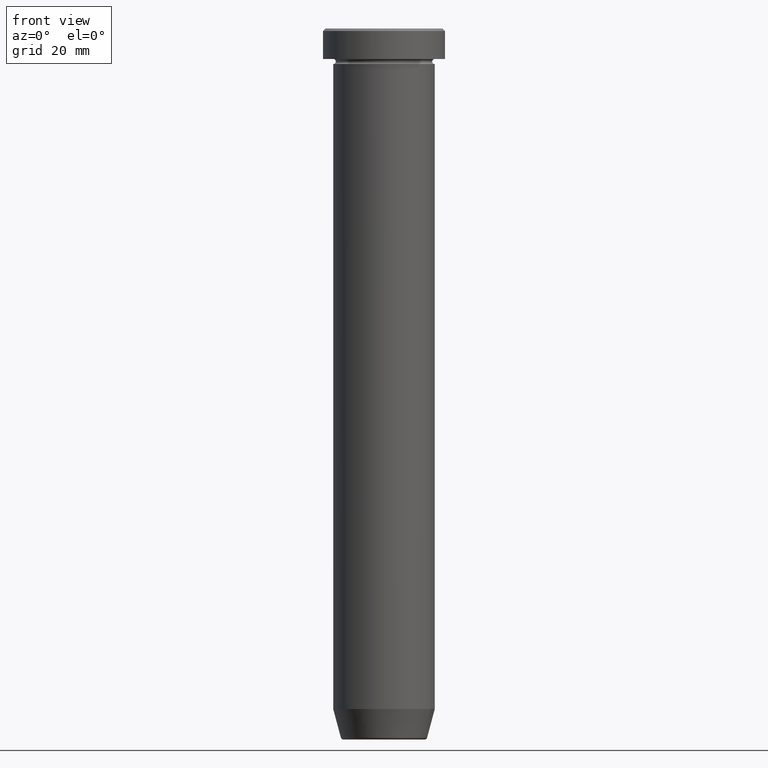
[diagram: clean part render]
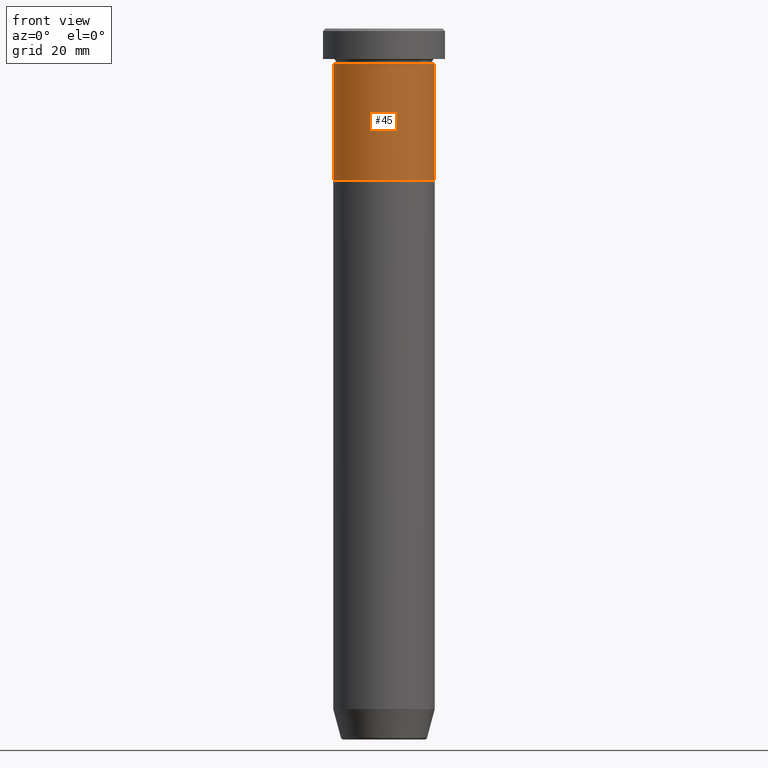
[diagram: same view with one face highlighted and labeled with its STEP entity id]
A machine part, front view. The second image highlights one B-rep face of the part: STEP entity #45.
In plain terms, the highlighted cylindrical surface (partial cylindrical patch) has radius 10 mm, axis along (-0, -0, 1).
Its self-contained STEP definition (entity closure, byte-faithful):
#13 = VERTEX_POINT ( 'NONE', #433 ) ;
#26 = VERTEX_POINT ( 'NONE', #547 ) ;
#45 = ADVANCED_FACE ( 'NONE', ( #219 ), #404, .T. ) ;
#64 = LINE ( 'NONE', #434, #79 ) ;
#67 = CARTESIAN_POINT ( 'NONE',  ( -10.00000000000000000, 1.224646799147353256E-15, -30.00000000000000000 ) ) ;
#79 = VECTOR ( 'NONE', #113, 1000.000000000000000 ) ;
#99 = ORIENTED_EDGE ( 'NONE', *, *, #581, .F. ) ;
#113 = DIRECTION ( 'NONE',  ( -0.000000000000000000, -0.000000000000000000, 1.000000000000000000 ) ) ;
#121 = ORIENTED_EDGE ( 'NONE', *, *, #405, .T. ) ;
#150 = AXIS2_PLACEMENT_3D ( 'NONE', #175, #310, #501 ) ;
#169 = ORIENTED_EDGE ( 'NONE', *, *, #345, .T. ) ;
#175 = CARTESIAN_POINT ( 'NONE',  ( 0.000000000000000000, 0.000000000000000000, -6.999999999999999112 ) ) ;
#199 = ORIENTED_EDGE ( 'NONE', *, *, #436, .F. ) ;
#219 = FACE_OUTER_BOUND ( 'NONE', #350, .T. ) ;
#260 = DIRECTION ( 'NONE',  ( -0.000000000000000000, -0.000000000000000000, 1.000000000000000000 ) ) ;
#277 = DIRECTION ( 'NONE',  ( -0.000000000000000000, -0.000000000000000000, 1.000000000000000000 ) ) ;
#283 = AXIS2_PLACEMENT_3D ( 'NONE', #497, #277, #359 ) ;
#289 = CIRCLE ( 'NONE', #283, 10.00000000000000000 ) ;
#310 = DIRECTION ( 'NONE',  ( -0.000000000000000000, -0.000000000000000000, 1.000000000000000000 ) ) ;
#311 = DIRECTION ( 'NONE',  ( 1.000000000000000000, 0.000000000000000000, 0.000000000000000000 ) ) ;
#312 = CARTESIAN_POINT ( 'NONE',  ( -10.00000000000000000, 1.224646799147353256E-15, -6.999999999999999112 ) ) ;
#345 = EDGE_CURVE ( 'NONE', #563, #13, #289, .T. ) ;
#350 = EDGE_LOOP ( 'NONE', ( #199, #169, #121, #99 ) ) ;
#359 = DIRECTION ( 'NONE',  ( 1.000000000000000000, 0.000000000000000000, 0.000000000000000000 ) ) ;
#389 = VERTEX_POINT ( 'NONE', #312 ) ;
#399 = LINE ( 'NONE', #446, #409 ) ;
#404 = CYLINDRICAL_SURFACE ( 'NONE', #463, 10.00000000000000000 ) ;
#405 = EDGE_CURVE ( 'NONE', #13, #26, #399, .T. ) ;
#409 = VECTOR ( 'NONE', #260, 1000.000000000000000 ) ;
#433 = CARTESIAN_POINT ( 'NONE',  ( 10.00000000000000000, 0.000000000000000000, -30.00000000000000000 ) ) ;
#434 = CARTESIAN_POINT ( 'NONE',  ( -10.00000000000000000, 1.224646799147353256E-15, 0.000000000000000000 ) ) ;
#436 = EDGE_CURVE ( 'NONE', #563, #389, #64, .T. ) ;
#437 = CARTESIAN_POINT ( 'NONE',  ( 0.000000000000000000, 0.000000000000000000, 0.000000000000000000 ) ) ;
#446 = CARTESIAN_POINT ( 'NONE',  ( 10.00000000000000000, 0.000000000000000000, 0.000000000000000000 ) ) ;
#463 = AXIS2_PLACEMENT_3D ( 'NONE', #437, #599, #311 ) ;
#497 = CARTESIAN_POINT ( 'NONE',  ( 0.000000000000000000, 0.000000000000000000, -30.00000000000000000 ) ) ;
#501 = DIRECTION ( 'NONE',  ( 1.000000000000000000, 0.000000000000000000, 0.000000000000000000 ) ) ;
#547 = CARTESIAN_POINT ( 'NONE',  ( 10.00000000000000000, 0.000000000000000000, -6.999999999999999112 ) ) ;
#551 = CIRCLE ( 'NONE', #150, 10.00000000000000000 ) ;
#563 = VERTEX_POINT ( 'NONE', #67 ) ;
#581 = EDGE_CURVE ( 'NONE', #389, #26, #551, .T. ) ;
#599 = DIRECTION ( 'NONE',  ( -0.000000000000000000, -0.000000000000000000, 1.000000000000000000 ) ) ;